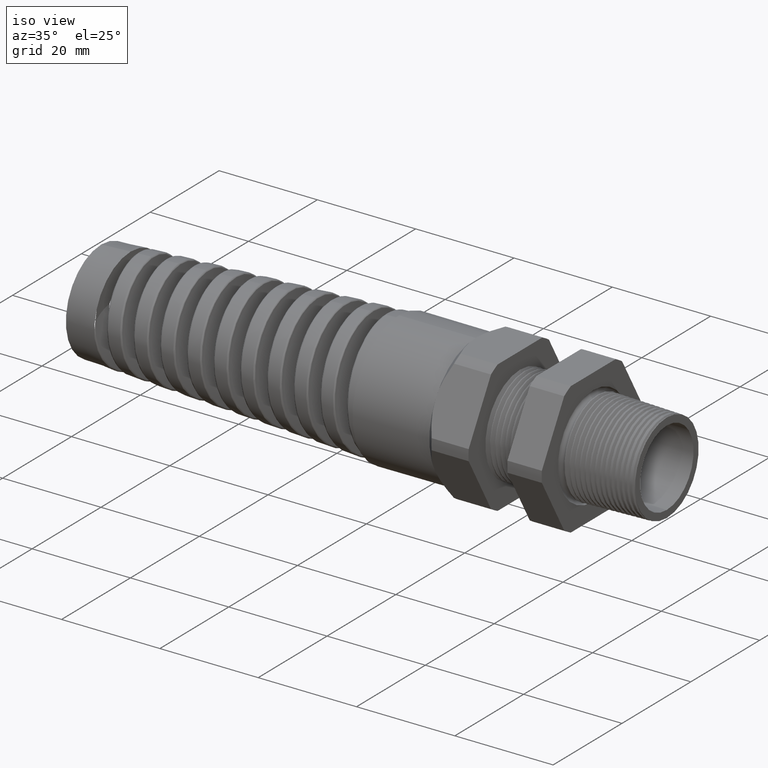
[diagram: clean part render]
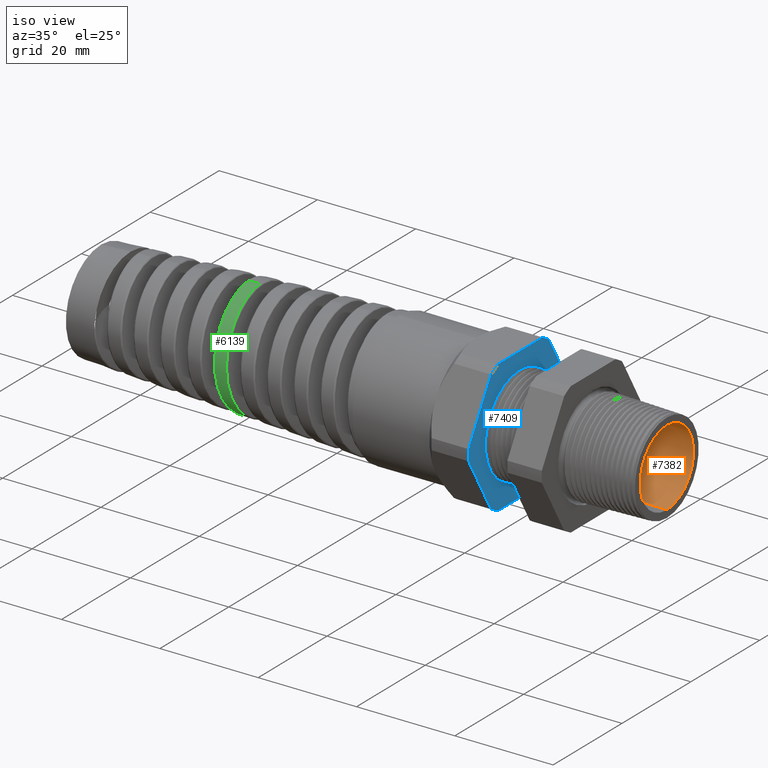
[diagram: same view with three faces highlighted in distinct colors, each labeled with its STEP entity id]
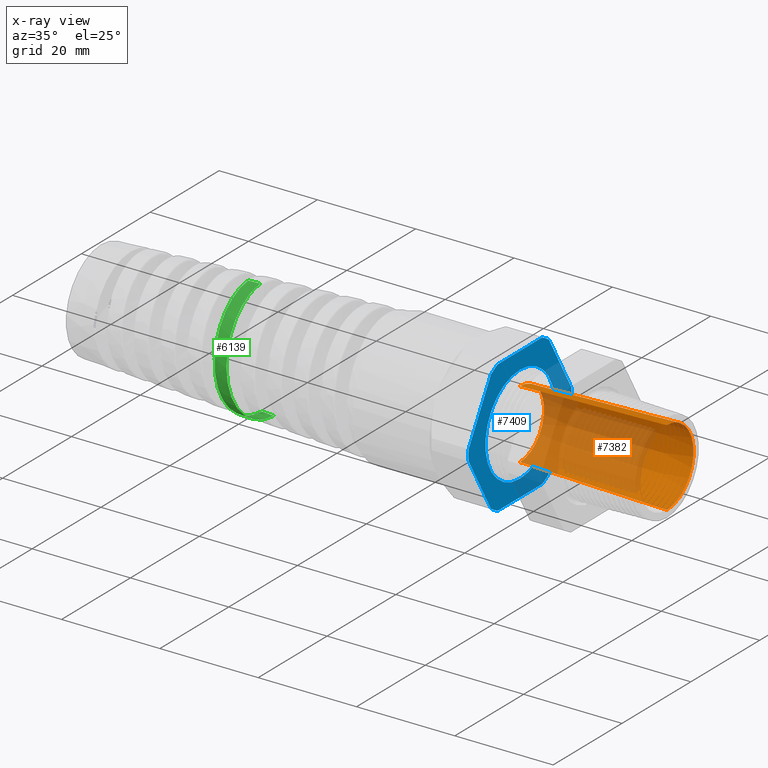
[diagram: x-ray of the same camera — body ghosted, the three highlighted faces saturated]
A machine part, iso view with three faces highlighted in distinct colors.
The next image is the same camera in x-ray (body ghosted, the three faces saturated) — at least one of them is partly hidden behind the body in this view.
Their STEP definitions:

[orange] entity #7382 — the highlighted conical surface has half-angle 1.5 deg.
#6727 = EDGE_CURVE ( 'NONE', #6802, #6808, #12091, .T. ) ;
#6801 = VERTEX_POINT ( 'NONE', #12262 ) ;
#6802 = VERTEX_POINT ( 'NONE', #12261 ) ;
#6804 = EDGE_CURVE ( 'NONE', #6801, #6805, #12260, .T. ) ;
#6805 = VERTEX_POINT ( 'NONE', #12256 ) ;
#6808 = VERTEX_POINT ( 'NONE', #12250 ) ;
#7381 = EDGE_CURVE ( 'NONE', #6802, #6801, #13382, .T. ) ;
#7382 = ADVANCED_FACE ( 'NONE', ( #13374 ), #13372, .F. ) ;
#7383 = EDGE_LOOP ( 'NONE', ( #7384, #7385, #7443, #7444 ) ) ;
#7384 = ORIENTED_EDGE ( 'NONE', *, *, #6804, .F. ) ;
#7385 = ORIENTED_EDGE ( 'NONE', *, *, #7381, .F. ) ;
#7443 = ORIENTED_EDGE ( 'NONE', *, *, #6727, .T. ) ;
#7444 = ORIENTED_EDGE ( 'NONE', *, *, #7445, .T. ) ;
#7445 = EDGE_CURVE ( 'NONE', #6808, #6805, #13513, .T. ) ;
#12088 = DIRECTION ( 'NONE',  ( 0.9996573249755573700, 0.0000000000000000000, -0.02617694830786632100 ) ) ;
#12089 = VECTOR ( 'NONE', #12088, 39.37007874015748100 ) ;
#12090 = CARTESIAN_POINT ( 'NONE',  ( -0.8962204724409449400, 0.0000000000000000000, -0.2750000000000000800 ) ) ;
#12091 = LINE ( 'NONE', #12090, #12089 ) ;
#12250 = CARTESIAN_POINT ( 'NONE',  ( 0.2800000000000000300, 0.0000000000000000000, -0.3058004170394025800 ) ) ;
#12256 = CARTESIAN_POINT ( 'NONE',  ( 0.2800000000000000300, 3.744975019052301000E-017, 0.3058004170394025800 ) ) ;
#12257 = DIRECTION ( 'NONE',  ( 0.9996573249755573700, 3.205751595667422000E-018, 0.02617694830786632100 ) ) ;
#12258 = VECTOR ( 'NONE', #12257, 39.37007874015748100 ) ;
#12259 = CARTESIAN_POINT ( 'NONE',  ( -0.8962204724409449400, 3.367778697655221900E-017, 0.2750000000000000800 ) ) ;
#12260 = LINE ( 'NONE', #12259, #12258 ) ;
#12261 = CARTESIAN_POINT ( 'NONE',  ( -0.8962204724409449400, 0.0000000000000000000, -0.2750000000000000800 ) ) ;
#12262 = CARTESIAN_POINT ( 'NONE',  ( -0.8962204724409449400, 3.367778697655222500E-017, 0.2750000000000001300 ) ) ;
#13372 = CONICAL_SURFACE ( 'NONE', #13373, 0.2750000000000000800, 0.02617993877990811000 ) ;
#13373 = AXIS2_PLACEMENT_3D ( 'NONE', #13436, #13435, #13434 ) ;
#13374 = FACE_OUTER_BOUND ( 'NONE', #7383, .T. ) ;
#13375 = DIRECTION ( 'NONE',  ( 0.0000000000000000000, 0.0000000000000000000, -1.000000000000000000 ) ) ;
#13376 = DIRECTION ( 'NONE',  ( 1.000000000000000000, -0.0000000000000000000, -0.0000000000000000000 ) ) ;
#13377 = CARTESIAN_POINT ( 'NONE',  ( -0.8962204724409449400, 0.0000000000000000000, 0.0000000000000000000 ) ) ;
#13378 = AXIS2_PLACEMENT_3D ( 'NONE', #13377, #13376, #13375 ) ;
#13382 = CIRCLE ( 'NONE', #13378, 0.2750000000000000800 ) ;
#13434 = DIRECTION ( 'NONE',  ( 0.0000000000000000000, 0.0000000000000000000, -1.000000000000000000 ) ) ;
#13435 = DIRECTION ( 'NONE',  ( 1.000000000000000000, -0.0000000000000000000, -0.0000000000000000000 ) ) ;
#13436 = CARTESIAN_POINT ( 'NONE',  ( -0.8962204724409449400, 0.0000000000000000000, 0.0000000000000000000 ) ) ;
#13509 = DIRECTION ( 'NONE',  ( 0.0000000000000000000, 0.0000000000000000000, -1.000000000000000000 ) ) ;
#13510 = DIRECTION ( 'NONE',  ( 1.000000000000000000, -0.0000000000000000000, -0.0000000000000000000 ) ) ;
#13511 = CARTESIAN_POINT ( 'NONE',  ( 0.2800000000000000300, 0.0000000000000000000, 0.0000000000000000000 ) ) ;
#13512 = AXIS2_PLACEMENT_3D ( 'NONE', #13511, #13510, #13509 ) ;
#13513 = CIRCLE ( 'NONE', #13512, 0.3058004170394025800 ) ;

[blue] entity #7409 — the highlighted planar face has unit normal (1, 0, -0).
#59 = VERTEX_POINT ( 'NONE', #8755 ) ;
#93 = VERTEX_POINT ( 'NONE', #8945 ) ;
#107 = EDGE_CURVE ( 'NONE', #59, #93, #8999, .T. ) ;
#7204 = EDGE_CURVE ( 'NONE', #7228, #7240, #12992, .T. ) ;
#7209 = VERTEX_POINT ( 'NONE', #13031 ) ;
#7221 = VERTEX_POINT ( 'NONE', #13046 ) ;
#7223 = EDGE_CURVE ( 'NONE', #7240, #7221, #13044, .T. ) ;
#7228 = VERTEX_POINT ( 'NONE', #13095 ) ;
#7240 = VERTEX_POINT ( 'NONE', #13073 ) ;
#7245 = VERTEX_POINT ( 'NONE', #13131 ) ;
#7251 = EDGE_CURVE ( 'NONE', #7245, #7261, #13124, .T. ) ;
#7255 = VERTEX_POINT ( 'NONE', #13113 ) ;
#7256 = EDGE_CURVE ( 'NONE', #7277, #7209, #13112, .T. ) ;
#7261 = VERTEX_POINT ( 'NONE', #13156 ) ;
#7272 = EDGE_CURVE ( 'NONE', #7209, #7228, #13141, .T. ) ;
#7277 = VERTEX_POINT ( 'NONE', #13175 ) ;
#7287 = EDGE_CURVE ( 'NONE', #7309, #7298, #13167, .T. ) ;
#7292 = VERTEX_POINT ( 'NONE', #13208 ) ;
#7298 = VERTEX_POINT ( 'NONE', #13197 ) ;
#7304 = EDGE_CURVE ( 'NONE', #7298, #7255, #13251, .T. ) ;
#7309 = VERTEX_POINT ( 'NONE', #13236 ) ;
#7320 = EDGE_CURVE ( 'NONE', #7255, #7245, #13274, .T. ) ;
#7323 = EDGE_CURVE ( 'NONE', #7261, #7277, #13258, .T. ) ;
#7338 = EDGE_CURVE ( 'NONE', #7356, #7292, #13291, .T. ) ;
#7346 = EDGE_CURVE ( 'NONE', #7221, #7356, #13337, .T. ) ;
#7351 = EDGE_CURVE ( 'NONE', #7292, #7309, #13326, .T. ) ;
#7356 = VERTEX_POINT ( 'NONE', #13367 ) ;
#7409 = ADVANCED_FACE ( 'NONE', ( #13456, #13450 ), #13449, .T. ) ;
#7410 = EDGE_LOOP ( 'NONE', ( #7411, #7475 ) ) ;
#7411 = ORIENTED_EDGE ( 'NONE', *, *, #7412, .F. ) ;
#7412 = EDGE_CURVE ( 'NONE', #93, #59, #13442, .T. ) ;
#7463 = ORIENTED_EDGE ( 'NONE', *, *, #7323, .T. ) ;
#7464 = ORIENTED_EDGE ( 'NONE', *, *, #7256, .T. ) ;
#7465 = ORIENTED_EDGE ( 'NONE', *, *, #7272, .T. ) ;
#7466 = ORIENTED_EDGE ( 'NONE', *, *, #7204, .T. ) ;
#7475 = ORIENTED_EDGE ( 'NONE', *, *, #107, .F. ) ;
#7476 = EDGE_LOOP ( 'NONE', ( #7477, #7478, #7479, #7480, #7481, #7482, #7483, #7484, #7463, #7464, #7465, #7466 ) ) ;
#7477 = ORIENTED_EDGE ( 'NONE', *, *, #7223, .T. ) ;
#7478 = ORIENTED_EDGE ( 'NONE', *, *, #7346, .T. ) ;
#7479 = ORIENTED_EDGE ( 'NONE', *, *, #7338, .T. ) ;
#7480 = ORIENTED_EDGE ( 'NONE', *, *, #7351, .T. ) ;
#7481 = ORIENTED_EDGE ( 'NONE', *, *, #7287, .T. ) ;
#7482 = ORIENTED_EDGE ( 'NONE', *, *, #7304, .T. ) ;
#7483 = ORIENTED_EDGE ( 'NONE', *, *, #7320, .T. ) ;
#7484 = ORIENTED_EDGE ( 'NONE', *, *, #7251, .T. ) ;
#8755 = CARTESIAN_POINT ( 'NONE',  ( -0.8962204724409449400, 4.837354856632045600E-017, -0.3950000000000000200 ) ) ;
#8945 = CARTESIAN_POINT ( 'NONE',  ( -0.8962204724409449400, 0.0000000000000000000, 0.3950000000000000200 ) ) ;
#8995 = DIRECTION ( 'NONE',  ( 0.0000000000000000000, 0.0000000000000000000, -1.000000000000000000 ) ) ;
#8996 = DIRECTION ( 'NONE',  ( 1.000000000000000000, -0.0000000000000000000, -0.0000000000000000000 ) ) ;
#8997 = CARTESIAN_POINT ( 'NONE',  ( -0.8962204724409449400, 0.0000000000000000000, 0.0000000000000000000 ) ) ;
#8998 = AXIS2_PLACEMENT_3D ( 'NONE', #8997, #8996, #8995 ) ;
#8999 = CIRCLE ( 'NONE', #8998, 0.3950000000000000200 ) ;
#12988 = DIRECTION ( 'NONE',  ( 0.0000000000000000000, 0.0000000000000000000, -1.000000000000000000 ) ) ;
#12989 = DIRECTION ( 'NONE',  ( 1.000000000000000000, -0.0000000000000000000, -0.0000000000000000000 ) ) ;
#12990 = CARTESIAN_POINT ( 'NONE',  ( -0.8962204724409449400, 0.0000000000000000000, 0.0000000000000000000 ) ) ;
#12991 = AXIS2_PLACEMENT_3D ( 'NONE', #12990, #12989, #12988 ) ;
#12992 = CIRCLE ( 'NONE', #12991, 0.5882999999999999300 ) ;
#13031 = CARTESIAN_POINT ( 'NONE',  ( -0.8962204724409449400, -0.2553368167734531000, -0.5300000000000001400 ) ) ;
#13041 = DIRECTION ( 'NONE',  ( 0.0000000000000000000, 0.5000000000000002200, 0.8660254037844383700 ) ) ;
#13042 = VECTOR ( 'NONE', #13041, 39.37007874015748100 ) ;
#13043 = CARTESIAN_POINT ( 'NONE',  ( -0.8962204724409449400, 0.5577434640057524800, -0.09395998275257339000 ) ) ;
#13044 = LINE ( 'NONE', #13043, #13042 ) ;
#13046 = CARTESIAN_POINT ( 'NONE',  ( -0.8962204724409449400, 0.5866618723924791300, -0.04387183015273697600 ) ) ;
#13073 = CARTESIAN_POINT ( 'NONE',  ( -0.8962204724409449400, 0.3313250556190258100, -0.4861281698472630400 ) ) ;
#13095 = CARTESIAN_POINT ( 'NONE',  ( -0.8962204724409449400, 0.2553368167734529900, -0.5300000000000001400 ) ) ;
#13108 = DIRECTION ( 'NONE',  ( 0.0000000000000000000, 0.0000000000000000000, -1.000000000000000000 ) ) ;
#13109 = DIRECTION ( 'NONE',  ( 1.000000000000000000, -0.0000000000000000000, -0.0000000000000000000 ) ) ;
#13110 = CARTESIAN_POINT ( 'NONE',  ( -0.8962204724409449400, 0.0000000000000000000, 0.0000000000000000000 ) ) ;
#13111 = AXIS2_PLACEMENT_3D ( 'NONE', #13110, #13109, #13108 ) ;
#13112 = CIRCLE ( 'NONE', #13111, 0.5883000000000000500 ) ;
#13113 = CARTESIAN_POINT ( 'NONE',  ( -0.8962204724409449400, -0.3313250556190262000, 0.4861281698472627600 ) ) ;
#13120 = DIRECTION ( 'NONE',  ( 0.0000000000000000000, 0.0000000000000000000, -1.000000000000000000 ) ) ;
#13121 = DIRECTION ( 'NONE',  ( 1.000000000000000000, -0.0000000000000000000, -0.0000000000000000000 ) ) ;
#13122 = CARTESIAN_POINT ( 'NONE',  ( -0.8962204724409449400, 0.0000000000000000000, 0.0000000000000000000 ) ) ;
#13123 = AXIS2_PLACEMENT_3D ( 'NONE', #13122, #13121, #13120 ) ;
#13124 = CIRCLE ( 'NONE', #13123, 0.5883000000000000500 ) ;
#13131 = CARTESIAN_POINT ( 'NONE',  ( -0.8962204724409449400, -0.5866618723924792400, 0.04387183015273651100 ) ) ;
#13140 = CARTESIAN_POINT ( 'NONE',  ( -0.8962204724409449400, 0.3950000000000000700, -0.5300000000000001400 ) ) ;
#13141 = LINE ( 'NONE', #13140, #13187 ) ;
#13156 = CARTESIAN_POINT ( 'NONE',  ( -0.8962204724409449400, -0.5866618723924791300, -0.04387183015273716400 ) ) ;
#13166 = CARTESIAN_POINT ( 'NONE',  ( -0.8962204724409449400, 0.3950000000000000700, 0.5299999999999999200 ) ) ;
#13167 = LINE ( 'NONE', #13166, #13221 ) ;
#13175 = CARTESIAN_POINT ( 'NONE',  ( -0.8962204724409449400, -0.3313250556190258700, -0.4861281698472630400 ) ) ;
#13186 = DIRECTION ( 'NONE',  ( 0.0000000000000000000, 1.000000000000000000, 0.0000000000000000000 ) ) ;
#13187 = VECTOR ( 'NONE', #13186, 39.37007874015748100 ) ;
#13197 = CARTESIAN_POINT ( 'NONE',  ( -0.8962204724409449400, -0.2553368167734533200, 0.5299999999999999200 ) ) ;
#13208 = CARTESIAN_POINT ( 'NONE',  ( -0.8962204724409449400, 0.3313250556190259800, 0.4861281698472629800 ) ) ;
#13220 = DIRECTION ( 'NONE',  ( 0.0000000000000000000, -1.000000000000000000, 0.0000000000000000000 ) ) ;
#13221 = VECTOR ( 'NONE', #13220, 39.37007874015748100 ) ;
#13236 = CARTESIAN_POINT ( 'NONE',  ( -0.8962204724409449400, 0.2553368167734533200, 0.5299999999999999200 ) ) ;
#13247 = DIRECTION ( 'NONE',  ( 0.0000000000000000000, 0.0000000000000000000, -1.000000000000000000 ) ) ;
#13248 = DIRECTION ( 'NONE',  ( 1.000000000000000000, -0.0000000000000000000, -0.0000000000000000000 ) ) ;
#13249 = CARTESIAN_POINT ( 'NONE',  ( -0.8962204724409449400, 0.0000000000000000000, 0.0000000000000000000 ) ) ;
#13250 = AXIS2_PLACEMENT_3D ( 'NONE', #13249, #13248, #13247 ) ;
#13251 = CIRCLE ( 'NONE', #13250, 0.5882999999999999300 ) ;
#13255 = DIRECTION ( 'NONE',  ( 0.0000000000000000000, 0.5000000000000001100, -0.8660254037844386000 ) ) ;
#13256 = VECTOR ( 'NONE', #13255, 39.37007874015748100 ) ;
#13257 = CARTESIAN_POINT ( 'NONE',  ( -0.8962204724409449400, -0.3602434640057525200, -0.4360400172474268000 ) ) ;
#13258 = LINE ( 'NONE', #13257, #13256 ) ;
#13265 = DIRECTION ( 'NONE',  ( -0.0000000000000000000, -0.4999999999999996100, -0.8660254037844388200 ) ) ;
#13266 = VECTOR ( 'NONE', #13265, 39.37007874015748900 ) ;
#13273 = CARTESIAN_POINT ( 'NONE',  ( -0.8962204724409449400, -0.3602434640057528000, 0.4360400172474264700 ) ) ;
#13274 = LINE ( 'NONE', #13273, #13266 ) ;
#13288 = DIRECTION ( 'NONE',  ( 0.0000000000000000000, -0.5000000000000001100, 0.8660254037844386000 ) ) ;
#13289 = VECTOR ( 'NONE', #13288, 39.37007874015748100 ) ;
#13290 = CARTESIAN_POINT ( 'NONE',  ( -0.8962204724409449400, 0.5577434640057525900, 0.09395998275257340400 ) ) ;
#13291 = LINE ( 'NONE', #13290, #13289 ) ;
#13322 = DIRECTION ( 'NONE',  ( 0.0000000000000000000, 0.0000000000000000000, -1.000000000000000000 ) ) ;
#13323 = DIRECTION ( 'NONE',  ( 1.000000000000000000, -0.0000000000000000000, -0.0000000000000000000 ) ) ;
#13324 = CARTESIAN_POINT ( 'NONE',  ( -0.8962204724409449400, 0.0000000000000000000, 0.0000000000000000000 ) ) ;
#13325 = AXIS2_PLACEMENT_3D ( 'NONE', #13324, #13323, #13322 ) ;
#13326 = CIRCLE ( 'NONE', #13325, 0.5882999999999999300 ) ;
#13333 = DIRECTION ( 'NONE',  ( 0.0000000000000000000, 0.0000000000000000000, -1.000000000000000000 ) ) ;
#13334 = DIRECTION ( 'NONE',  ( 1.000000000000000000, -0.0000000000000000000, -0.0000000000000000000 ) ) ;
#13335 = CARTESIAN_POINT ( 'NONE',  ( -0.8962204724409449400, 0.0000000000000000000, 0.0000000000000000000 ) ) ;
#13336 = AXIS2_PLACEMENT_3D ( 'NONE', #13335, #13334, #13333 ) ;
#13337 = CIRCLE ( 'NONE', #13336, 0.5883000000000000500 ) ;
#13367 = CARTESIAN_POINT ( 'NONE',  ( -0.8962204724409449400, 0.5866618723924791300, 0.04387183015273708700 ) ) ;
#13439 = DIRECTION ( 'NONE',  ( 0.0000000000000000000, 0.0000000000000000000, -1.000000000000000000 ) ) ;
#13440 = DIRECTION ( 'NONE',  ( 1.000000000000000000, -0.0000000000000000000, -0.0000000000000000000 ) ) ;
#13441 = AXIS2_PLACEMENT_3D ( 'NONE', #13448, #13440, #13439 ) ;
#13442 = CIRCLE ( 'NONE', #13441, 0.3950000000000000200 ) ;
#13444 = DIRECTION ( 'NONE',  ( -0.0000000000000000000, 0.0000000000000000000, -1.000000000000000000 ) ) ;
#13445 = DIRECTION ( 'NONE',  ( 1.000000000000000000, 0.0000000000000000000, -0.0000000000000000000 ) ) ;
#13446 = CARTESIAN_POINT ( 'NONE',  ( -0.8962204724409449400, 0.3950000000000000700, 0.0000000000000000000 ) ) ;
#13447 = AXIS2_PLACEMENT_3D ( 'NONE', #13446, #13445, #13444 ) ;
#13448 = CARTESIAN_POINT ( 'NONE',  ( -0.8962204724409449400, 0.0000000000000000000, 0.0000000000000000000 ) ) ;
#13449 = PLANE ( 'NONE',  #13447 ) ;
#13450 = FACE_OUTER_BOUND ( 'NONE', #7476, .T. ) ;
#13456 = FACE_BOUND ( 'NONE', #7410, .T. ) ;

[green] entity #6139 — the highlighted conical surface has half-angle 2.5 deg.
#189 = VERTEX_POINT ( 'NONE', #9096 ) ;
#415 = EDGE_CURVE ( 'NONE', #416, #189, #9297, .T. ) ;
#416 = VERTEX_POINT ( 'NONE', #9293 ) ;
#4942 = CARTESIAN_POINT ( 'NONE',  ( -2.865084779104734900, 8.987903335913417300E-013, -0.4664696265324626600 ) ) ;
#5078 = DIRECTION ( 'NONE',  ( 0.9990482215818576900, 0.0000000000000000000, -0.04361938736533629800 ) ) ;
#5079 = VECTOR ( 'NONE', #5078, 39.37007874015748100 ) ;
#5080 = CARTESIAN_POINT ( 'NONE',  ( -1.409999999999999900, 0.0000000000000000000, -0.5299999999999998000 ) ) ;
#5081 = LINE ( 'NONE', #5080, #5079 ) ;
#5192 = CARTESIAN_POINT ( 'NONE',  ( -2.963218297456196900, -7.384894103288029400E-013, -0.4621850245903080200 ) ) ;
#6114 = ORIENTED_EDGE ( 'NONE', *, *, #6116, .T. ) ;
#6116 = EDGE_CURVE ( 'NONE', #18617, #189, #9847, .T. ) ;
#6117 = ORIENTED_EDGE ( 'NONE', *, *, #18636, .T. ) ;
#6134 = ORIENTED_EDGE ( 'NONE', *, *, #6136, .T. ) ;
#6136 = EDGE_CURVE ( 'NONE', #416, #18644, #10137, .T. ) ;
#6137 = EDGE_LOOP ( 'NONE', ( #6138, #6134, #6117, #6114 ) ) ;
#6138 = ORIENTED_EDGE ( 'NONE', *, *, #415, .F. ) ;
#6139 = ADVANCED_FACE ( 'NONE', ( #10138 ), #10136, .T. ) ;
#9096 = CARTESIAN_POINT ( 'NONE',  ( -2.974912526112016800, -1.093832192123179100E-012, 0.4616744435406072200 ) ) ;
#9293 = CARTESIAN_POINT ( 'NONE',  ( -3.073389006483137700, 1.487107487252004700E-015, 0.4573748675532924900 ) ) ;
#9294 = DIRECTION ( 'NONE',  ( 0.9990482215818576900, 5.341834311772759500E-018, 0.04361938736533629800 ) ) ;
#9295 = VECTOR ( 'NONE', #9294, 39.37007874015748100 ) ;
#9296 = CARTESIAN_POINT ( 'NONE',  ( -1.409999999999999900, 6.490628035480970000E-017, 0.5299999999999998000 ) ) ;
#9297 = LINE ( 'NONE', #9296, #9295 ) ;
#9835 = CARTESIAN_POINT ( 'NONE',  ( -2.884440804327792000, -0.2449810604392221000, -0.3962608367811735200 ) ) ;
#9836 = CARTESIAN_POINT ( 'NONE',  ( -2.883288591373838200, -0.2317910288112394500, -0.4041744735684524900 ) ) ;
#9837 = CARTESIAN_POINT ( 'NONE',  ( -2.881007968151549000, -0.2049873801746117100, -0.4185176320854344700 ) ) ;
#9838 = CARTESIAN_POINT ( 'NONE',  ( -2.878738753599767300, -0.1776265450918892200, -0.4314751023065938100 ) ) ;
#9839 = CARTESIAN_POINT ( 'NONE',  ( -2.876470173955103500, -0.1491727778733126200, -0.4417101157259590800 ) ) ;
#9840 = CARTESIAN_POINT ( 'NONE',  ( -2.874192378943960500, -0.1201675081710646300, -0.4505694246521687000 ) ) ;
#9841 = CARTESIAN_POINT ( 'NONE',  ( -2.873044470143724100, -0.1053314293060257100, -0.4543224552774047200 ) ) ;
#9842 = CARTESIAN_POINT ( 'NONE',  ( -2.869604321110756000, -0.06035933044368439100, -0.4633592312539726000 ) ) ;
#9843 = CARTESIAN_POINT ( 'NONE',  ( -2.867349953685484300, -0.03024303514812269600, -0.4663707268744730600 ) ) ;
#9844 = CARTESIAN_POINT ( 'NONE',  ( -2.865084779104734900, 8.987903335913417300E-013, -0.4664696265324626600 ) ) ;
#9847 = B_SPLINE_CURVE_WITH_KNOTS ( 'NONE', 3,
 ( #9844, #9843, #9842, #9841, #9840, #9839, #9838, #9837, #9836, #9835, #9914, #9913, #9912, #9911, #9910, #9909, #9908, #9907, #9906, #9905, #9904, #9903, #9902, #9901, #9900, #9899, #9898, #9897, #9896, #9895, #9894, #9893, #9892, #9891, #9890, #9889, #9888, #9887, #9886, #9885, #9884, #9883, #9882 ),
 .UNSPECIFIED., .F., .F.,
 ( 4, 2, 2, 1, 2, 2, 2, 2, 2, 2, 2, 2, 2, 2, 2, 2, 2, 2, 2, 2, 2, 4 ),
 ( 0.3541653832159623000, 0.3565027737352173300, 0.3576714689948448100, 0.3588401642544722900, 0.3600088595140998300, 0.3611775547737273200, 0.3635149452929823400, 0.3658523358122373600, 0.3681897263314923300, 0.3693584215911198700, 0.3705271168507473500, 0.3728645073700023700, 0.3752018978892574000, 0.3763705931488848800, 0.3775392884085123600, 0.3798766789277673900, 0.3810453741873949300, 0.3822140694470224100, 0.3845514599662774300, 0.3868888504855324500, 0.3892262410047874200, 0.3915636315240424400 ),
 .UNSPECIFIED. ) ;
#9882 = CARTESIAN_POINT ( 'NONE',  ( -2.974912526112016800, -1.093832192123179100E-012, 0.4616744435406072200 ) ) ;
#9883 = CARTESIAN_POINT ( 'NONE',  ( -2.972617957326213000, -0.03029942839419046800, 0.4617746265772920100 ) ) ;
#9884 = CARTESIAN_POINT ( 'NONE',  ( -2.970293632818204800, -0.06106161755106768300, 0.4588227892025755200 ) ) ;
#9885 = CARTESIAN_POINT ( 'NONE',  ( -2.965712408378822700, -0.1204949579271882600, 0.4471159218872334300 ) ) ;
#9886 = CARTESIAN_POINT ( 'NONE',  ( -2.963434781469282500, -0.1494474637284564900, 0.4384065012621858900 ) ) ;
#9887 = CARTESIAN_POINT ( 'NONE',  ( -2.958820493716424400, -0.2057907836848188700, 0.4151761340969008500 ) ) ;
#9888 = CARTESIAN_POINT ( 'NONE',  ( -2.956492423530849800, -0.2330883950935021000, 0.4006096644982122800 ) ) ;
#9889 = CARTESIAN_POINT ( 'NONE',  ( -2.951883068241720800, -0.2838322190514799800, 0.3666657356559014400 ) ) ;
#9890 = CARTESIAN_POINT ( 'NONE',  ( -2.949611028732429300, -0.3071862492818660500, 0.3474434398879845400 ) ) ;
#9891 = CARTESIAN_POINT ( 'NONE',  ( -2.946180855145664100, -0.3392658499661900800, 0.3153264945699874600 ) ) ;
#9892 = CARTESIAN_POINT ( 'NONE',  ( -2.945033976258430100, -0.3494636252506963500, 0.3040696571240277300 ) ) ;
#9893 = CARTESIAN_POINT ( 'NONE',  ( -2.942723053292811900, -0.3688374214830003600, 0.2804203539314689700 ) ) ;
#9894 = CARTESIAN_POINT ( 'NONE',  ( -2.941567108116782200, -0.3779399184173628000, 0.2681065811251505100 ) ) ;
#9895 = CARTESIAN_POINT ( 'NONE',  ( -2.938133063356201700, -0.4031613216393772300, 0.2302381544475873300 ) ) ;
#9896 = CARTESIAN_POINT ( 'NONE',  ( -2.935867534371456900, -0.4173778210977622800, 0.2035685305992077100 ) ) ;
#9897 = CARTESIAN_POINT ( 'NONE',  ( -2.932430019670520400, -0.4347802179731876700, 0.1614204971299065800 ) ) ;
#9898 = CARTESIAN_POINT ( 'NONE',  ( -2.931271427275144300, -0.4399430345137555500, 0.1469305159482520200 ) ) ;
#9899 = CARTESIAN_POINT ( 'NONE',  ( -2.928972342781880100, -0.4487379812410232600, 0.1177529314967395400 ) ) ;
#9900 = CARTESIAN_POINT ( 'NONE',  ( -2.927829623458203300, -0.4523899627729226500, 0.1030411322745488900 ) ) ;
#9901 = CARTESIAN_POINT ( 'NONE',  ( -2.924407072378706600, -0.4611622682348254200, 0.05854653554067312800 ) ) ;
#9902 = CARTESIAN_POINT ( 'NONE',  ( -2.922135986621650500, -0.4641200469922625600, 0.02840776366965648900 ) ) ;
#9903 = CARTESIAN_POINT ( 'NONE',  ( -2.917525809590103300, -0.4640280335933989500, -0.03285159392460704200 ) ) ;
#9904 = CARTESIAN_POINT ( 'NONE',  ( -2.915253442151903000, -0.4609707637082692800, -0.06304584014747380300 ) ) ;
#9905 = CARTESIAN_POINT ( 'NONE',  ( -2.911838381942697400, -0.4520676885027183900, -0.1075029201600378500 ) ) ;
#9906 = CARTESIAN_POINT ( 'NONE',  ( -2.910698310274170400, -0.4483751247713758700, -0.1221935531566780300 ) ) ;
#9907 = CARTESIAN_POINT ( 'NONE',  ( -2.908404919203683800, -0.4395102210769851200, -0.1513119639268591100 ) ) ;
#9908 = CARTESIAN_POINT ( 'NONE',  ( -2.907246921250284700, -0.4343078758107603600, -0.1657953978316806800 ) ) ;
#9909 = CARTESIAN_POINT ( 'NONE',  ( -2.903812641813064300, -0.4167786331704878000, -0.2079446529517444400 ) ) ;
#9910 = CARTESIAN_POINT ( 'NONE',  ( -2.901554040110319500, -0.4024930322727637800, -0.2345821796393571500 ) ) ;
#9911 = CARTESIAN_POINT ( 'NONE',  ( -2.896999418612059300, -0.3687944453219886300, -0.2849649571947053800 ) ) ;
#9912 = CARTESIAN_POINT ( 'NONE',  ( -2.894686233707626200, -0.3491782933764532300, -0.3088387283225098600 ) ) ;
#9913 = CARTESIAN_POINT ( 'NONE',  ( -2.890130223104576700, -0.3063313547485945200, -0.3516433522468617700 ) ) ;
#9914 = CARTESIAN_POINT ( 'NONE',  ( -2.887869885386238800, -0.2829724595570745100, -0.3708396905820168200 ) ) ;
#10117 = CARTESIAN_POINT ( 'NONE',  ( -3.034219334343690300, -0.4128177109602401700, 0.2014206213194180100 ) ) ;
#10118 = CARTESIAN_POINT ( 'NONE',  ( -3.036535564051346300, -0.3985467282596421600, 0.2281586977951791700 ) ) ;
#10119 = CARTESIAN_POINT ( 'NONE',  ( -3.037693654509976000, -0.3907515290132164100, 0.2411614046993553200 ) ) ;
#10120 = CARTESIAN_POINT ( 'NONE',  ( -3.041142098101938400, -0.3657101348639378300, 0.2786409130878541600 ) ) ;
#10121 = CARTESIAN_POINT ( 'NONE',  ( -3.043421028195448600, -0.3467205963774581100, 0.3018000305368887500 ) ) ;
#10122 = CARTESIAN_POINT ( 'NONE',  ( -3.046874168092728500, -0.3147653575220580900, 0.3337691819608129600 ) ) ;
#10123 = CARTESIAN_POINT ( 'NONE',  ( -3.048037584344690300, -0.3034670901253097000, 0.3440073043029029900 ) ) ;
#10124 = CARTESIAN_POINT ( 'NONE',  ( -3.050345130398940200, -0.2801213147667286400, 0.3631431888807715700 ) ) ;
#10125 = CARTESIAN_POINT ( 'NONE',  ( -3.051492438783530900, -0.2680499249698000100, 0.3720763412111685000 ) ) ;
#10126 = CARTESIAN_POINT ( 'NONE',  ( -3.054932270045331900, -0.2306678806624982700, 0.3970130030532916200 ) ) ;
#10127 = CARTESIAN_POINT ( 'NONE',  ( -3.057223201664338600, -0.2042008720473546800, 0.4111720236519991700 ) ) ;
#10128 = CARTESIAN_POINT ( 'NONE',  ( -3.061874981858982500, -0.1480483950636290200, 0.4343455649119504200 ) ) ;
#10129 = CARTESIAN_POINT ( 'NONE',  ( -3.064159578767119200, -0.1192912612877430200, 0.4429757899181471200 ) ) ;
#10130 = CARTESIAN_POINT ( 'NONE',  ( -3.067600313575256500, -0.07520189496153516200, 0.4516547960037917700 ) ) ;
#10131 = CARTESIAN_POINT ( 'NONE',  ( -3.068749451380975200, -0.06034409796243996700, 0.4538319700567935400 ) ) ;
#10132 = CARTESIAN_POINT ( 'NONE',  ( -3.071063823388666700, -0.03029921528514621000, 0.4567213162382335300 ) ) ;
#10133 = CARTESIAN_POINT ( 'NONE',  ( -3.072232449568960800, -0.01506782736947153400, 0.4574253639186927100 ) ) ;
#10134 = CARTESIAN_POINT ( 'NONE',  ( -3.073389006483137700, 1.487107487252004700E-015, 0.4573748675532924900 ) ) ;
#10135 = AXIS2_PLACEMENT_3D ( 'NONE', #10166, #10165, #10164 ) ;
#10136 = CONICAL_SURFACE ( 'NONE', #10135, 0.5299999999999998000, 0.04363323129985853500 ) ;
#10137 = B_SPLINE_CURVE_WITH_KNOTS ( 'NONE', 3,
 ( #10134, #10133, #10132, #10131, #10130, #10129, #10128, #10127, #10126, #10125, #10124, #10123, #10122, #10121, #10120, #10119, #10118, #10117, #10197, #10196, #10195, #10194, #10193, #10192, #10191, #10190, #10189, #10188, #10187, #10186, #10185, #10184, #10183, #10182, #10181, #10180, #10179, #10178, #10177, #10176, #10175, #10174, #10173, #10172, #10171, #10170, #10169, #10168, #10167 ),
 .UNSPECIFIED., .F., .F.,
 ( 4, 2, 2, 2, 2, 2, 2, 2, 2, 2, 2, 2, 1, 2, 2, 2, 2, 2, 2, 2, 2, 2, 2, 2, 4 ),
 ( 0.3004948337227221200, 0.3016527169088975600, 0.3028106000950729900, 0.3051263664674239200, 0.3074421328397747800, 0.3086000160259502200, 0.3097578992121257100, 0.3120736655844765800, 0.3132315487706520100, 0.3143894319568274500, 0.3167051983291783200, 0.3178630815153538100, 0.3190209647015292400, 0.3201788478877046800, 0.3213367310738801100, 0.3236524974462309800, 0.3248103806324064100, 0.3259682638185818500, 0.3282840301909327200, 0.3294419133771081500, 0.3305997965632836400, 0.3329155629356345100, 0.3352313293079853800, 0.3363892124941608200, 0.3375470956803362500 ),
 .UNSPECIFIED. ) ;
#10138 = FACE_OUTER_BOUND ( 'NONE', #6137, .T. ) ;
#10164 = DIRECTION ( 'NONE',  ( 0.0000000000000000000, 0.0000000000000000000, -1.000000000000000000 ) ) ;
#10165 = DIRECTION ( 'NONE',  ( 1.000000000000000000, -0.0000000000000000000, -0.0000000000000000000 ) ) ;
#10166 = CARTESIAN_POINT ( 'NONE',  ( -1.409999999999999900, 0.0000000000000000000, 0.0000000000000000000 ) ) ;
#10167 = CARTESIAN_POINT ( 'NONE',  ( -2.963218297456196900, -7.384894103288029400E-013, -0.4621850245903080200 ) ) ;
#10168 = CARTESIAN_POINT ( 'NONE',  ( -2.964362523925651700, -0.01509040989141849200, -0.4621350665837267700 ) ) ;
#10169 = CARTESIAN_POINT ( 'NONE',  ( -2.965518004260338200, -0.03031674859438448000, -0.4613352198995374100 ) ) ;
#10170 = CARTESIAN_POINT ( 'NONE',  ( -2.967806507524464200, -0.06030114996661866500, -0.4582801875768418000 ) ) ;
#10171 = CARTESIAN_POINT ( 'NONE',  ( -2.968945272948920500, -0.07513532348211474100, -0.4560294239009560800 ) ) ;
#10172 = CARTESIAN_POINT ( 'NONE',  ( -2.972359751188822700, -0.1191715023534168400, -0.4471479384158551500 ) ) ;
#10173 = CARTESIAN_POINT ( 'NONE',  ( -2.974637738660224100, -0.1479981580540508100, -0.4383726475088711700 ) ) ;
#10174 = CARTESIAN_POINT ( 'NONE',  ( -2.979241032647673500, -0.2039916745544072000, -0.4150613046997996300 ) ) ;
#10175 = CARTESIAN_POINT ( 'NONE',  ( -2.981507678165035400, -0.2304146294342557800, -0.4008546283855022900 ) ) ;
#10176 = CARTESIAN_POINT ( 'NONE',  ( -2.984925873627737800, -0.2677656657615858900, -0.3758534420898921900 ) ) ;
#10177 = CARTESIAN_POINT ( 'NONE',  ( -2.986068106102134600, -0.2798327160674993200, -0.3669000735167425900 ) ) ;
#10178 = CARTESIAN_POINT ( 'NONE',  ( -2.988368284831164300, -0.3031800782967201100, -0.3477229226140715100 ) ) ;
#10179 = CARTESIAN_POINT ( 'NONE',  ( -2.989527122746326300, -0.3144616993302553600, -0.3374833882131456100 ) ) ;
#10180 = CARTESIAN_POINT ( 'NONE',  ( -2.992963411410038500, -0.3463785832073497700, -0.3055237867242340300 ) ) ;
#10181 = CARTESIAN_POINT ( 'NONE',  ( -2.995227447185942800, -0.3653712478647510000, -0.2823700418319004000 ) ) ;
#10182 = CARTESIAN_POINT ( 'NONE',  ( -2.998657941224520200, -0.3904421387229570200, -0.2448836389922968100 ) ) ;
#10183 = CARTESIAN_POINT ( 'NONE',  ( -2.999812413217325200, -0.3982576756346198900, -0.2318636112717545600 ) ) ;
#10184 = CARTESIAN_POINT ( 'NONE',  ( -3.002119161036681300, -0.4125371907955700000, -0.2051589892936876700 ) ) ;
#10185 = CARTESIAN_POINT ( 'NONE',  ( -3.003264922748367600, -0.4189673062354555800, -0.1915541298854431000 ) ) ;
#10186 = CARTESIAN_POINT ( 'NONE',  ( -3.006694642924185000, -0.4361898374086074500, -0.1500048422989900800 ) ) ;
#10187 = CARTESIAN_POINT ( 'NONE',  ( -3.008968267385369700, -0.4449341642458751200, -0.1213324827924317100 ) ) ;
#10188 = CARTESIAN_POINT ( 'NONE',  ( -3.012424013242516600, -0.4538281040999270200, -0.07682857787831323700 ) ) ;
#10189 = CARTESIAN_POINT ( 'NONE',  ( -3.013580738660340600, -0.4560658784361117400, -0.06178509408293275700 ) ) ;
#10190 = CARTESIAN_POINT ( 'NONE',  ( -3.015872736458618400, -0.4590283467158635700, -0.03184977078665920300 ) ) ;
#10191 = CARTESIAN_POINT ( 'NONE',  ( -3.018155473430626400, -0.4605120500177756200, -0.001909099827943356700 ) ) ;
#10192 = CARTESIAN_POINT ( 'NONE',  ( -3.020442193387062900, -0.4590772328551677700, 0.02804041917036909400 ) ) ;
#10193 = CARTESIAN_POINT ( 'NONE',  ( -3.022740802318209400, -0.4561607687415181200, 0.05799367377539611800 ) ) ;
#10194 = CARTESIAN_POINT ( 'NONE',  ( -3.023902496467978400, -0.4539432028667605400, 0.07305466735545909600 ) ) ;
#10195 = CARTESIAN_POINT ( 'NONE',  ( -3.027364298021392000, -0.4451203746622878800, 0.1175415274986497300 ) ) ;
#10196 = CARTESIAN_POINT ( 'NONE',  ( -3.029637428792546100, -0.4364192527930961200, 0.1462212460490894300 ) ) ;
#10197 = CARTESIAN_POINT ( 'NONE',  ( -3.033070981448151600, -0.4192379624477546300, 0.1878019086706163900 ) ) ;
#18617 = VERTEX_POINT ( 'NONE', #4942 ) ;
#18636 = EDGE_CURVE ( 'NONE', #18644, #18617, #5081, .T. ) ;
#18644 = VERTEX_POINT ( 'NONE', #5192 ) ;